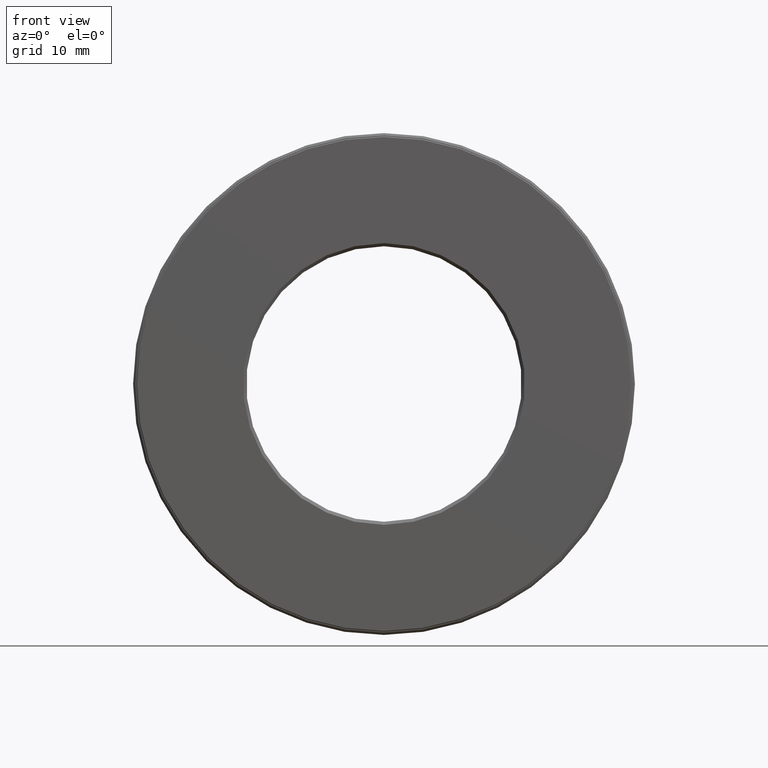
[diagram: clean part render]
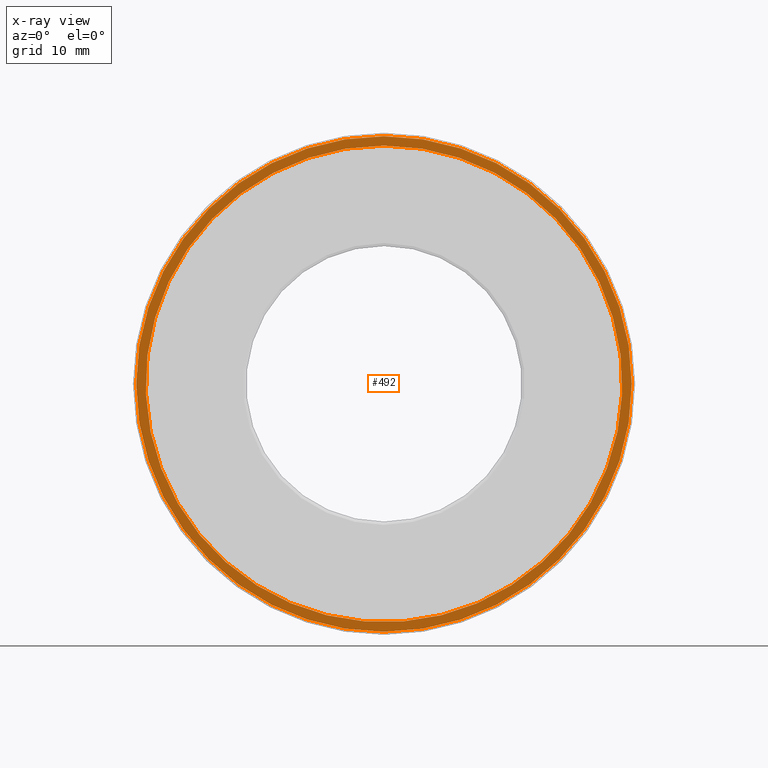
[diagram: x-ray — body ghosted, one internal face saturated and labeled with its STEP entity id]
A machine part, front view, then the same camera in x-ray: the body is ghosted and one INTERNAL B-rep face — a face not visible from any outside direction — is saturated and labeled: STEP entity #492.
In plain terms, the highlighted planar face has unit normal (-0, 1, 0).
Its self-contained STEP definition (entity closure, byte-faithful):
#3 = DIRECTION ( 'NONE',  ( -0.0000000000000000000, 1.000000000000000000, -0.0000000000000000000 ) ) ;
#24 = DIRECTION ( 'NONE',  ( -0.0000000000000000000, 1.000000000000000000, 0.0000000000000000000 ) ) ;
#49 = DIRECTION ( 'NONE',  ( 0.0000000000000000000, 0.0000000000000000000, 1.000000000000000000 ) ) ;
#72 = CIRCLE ( 'NONE', #321, 1.513749999999999900 ) ;
#131 = CARTESIAN_POINT ( 'NONE',  ( 0.0000000000000000000, 1.089999999999999900, 0.0000000000000000000 ) ) ;
#157 = EDGE_CURVE ( 'NONE', #309, #309, #72, .T. ) ;
#177 = DIRECTION ( 'NONE',  ( 0.0000000000000000000, 0.0000000000000000000, 1.000000000000000000 ) ) ;
#205 = CIRCLE ( 'NONE', #482, 1.573749999999999800 ) ;
#229 = ORIENTED_EDGE ( 'NONE', *, *, #157, .T. ) ;
#236 = EDGE_LOOP ( 'NONE', ( #229 ) ) ;
#239 = VERTEX_POINT ( 'NONE', #289 ) ;
#245 = EDGE_CURVE ( 'NONE', #239, #239, #205, .T. ) ;
#289 = CARTESIAN_POINT ( 'NONE',  ( 0.0000000000000000000, 1.089999999999999900, 1.573749999999999800 ) ) ;
#292 = CARTESIAN_POINT ( 'NONE',  ( 0.0000000000000000000, 1.089999999999999900, 0.0000000000000000000 ) ) ;
#309 = VERTEX_POINT ( 'NONE', #464 ) ;
#321 = AXIS2_PLACEMENT_3D ( 'NONE', #334, #511, #49 ) ;
#323 = PLANE ( 'NONE',  #495 ) ;
#329 = FACE_OUTER_BOUND ( 'NONE', #589, .T. ) ;
#334 = CARTESIAN_POINT ( 'NONE',  ( 0.0000000000000000000, 1.089999999999999900, 0.0000000000000000000 ) ) ;
#349 = ORIENTED_EDGE ( 'NONE', *, *, #245, .F. ) ;
#436 = FACE_BOUND ( 'NONE', #236, .T. ) ;
#464 = CARTESIAN_POINT ( 'NONE',  ( 0.0000000000000000000, 1.089999999999999900, 1.513749999999999900 ) ) ;
#482 = AXIS2_PLACEMENT_3D ( 'NONE', #292, #3, #564 ) ;
#492 = ADVANCED_FACE ( 'NONE', ( #329, #436 ), #323, .F. ) ;
#495 = AXIS2_PLACEMENT_3D ( 'NONE', #131, #24, #177 ) ;
#511 = DIRECTION ( 'NONE',  ( -0.0000000000000000000, 1.000000000000000000, -0.0000000000000000000 ) ) ;
#564 = DIRECTION ( 'NONE',  ( 0.0000000000000000000, 0.0000000000000000000, 1.000000000000000000 ) ) ;
#589 = EDGE_LOOP ( 'NONE', ( #349 ) ) ;